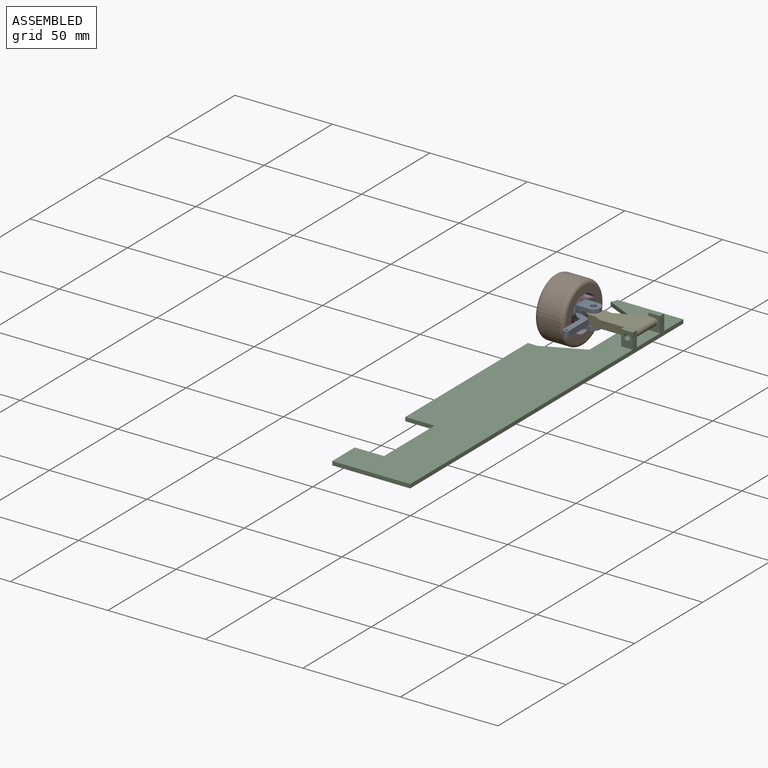
[diagram: assembled view]
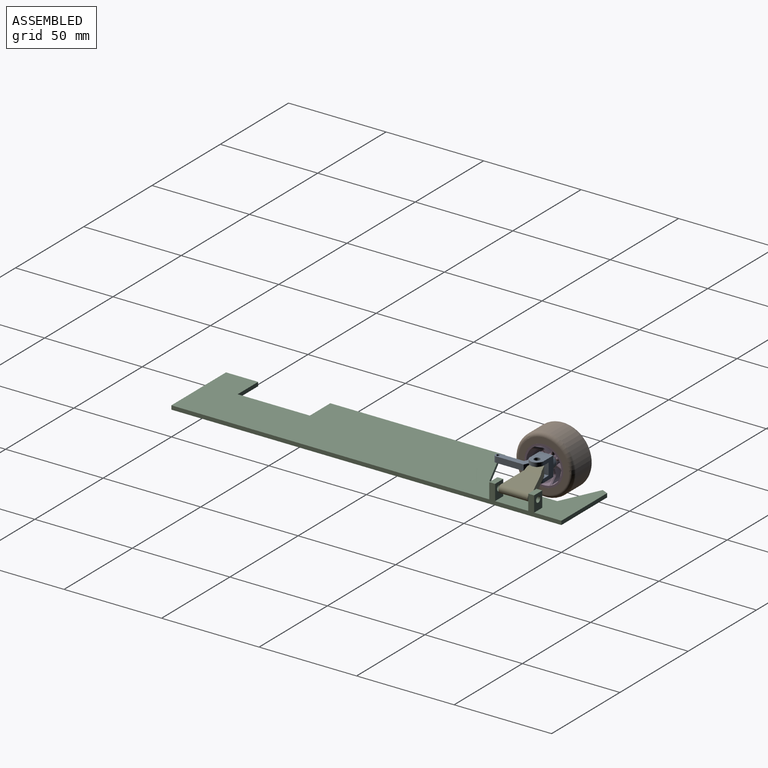
[diagram: assembled view, second angle]
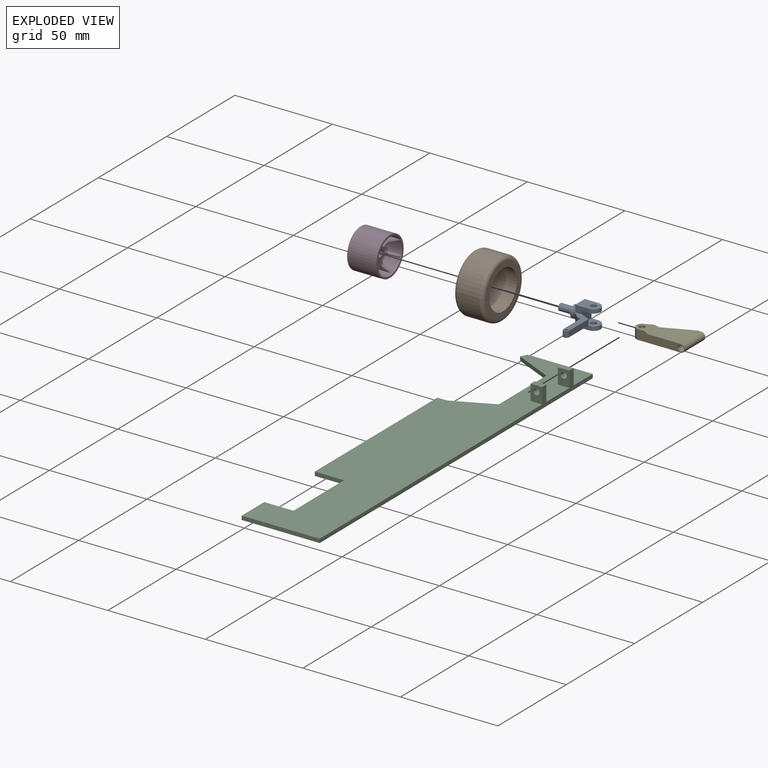
[diagram: exploded view]
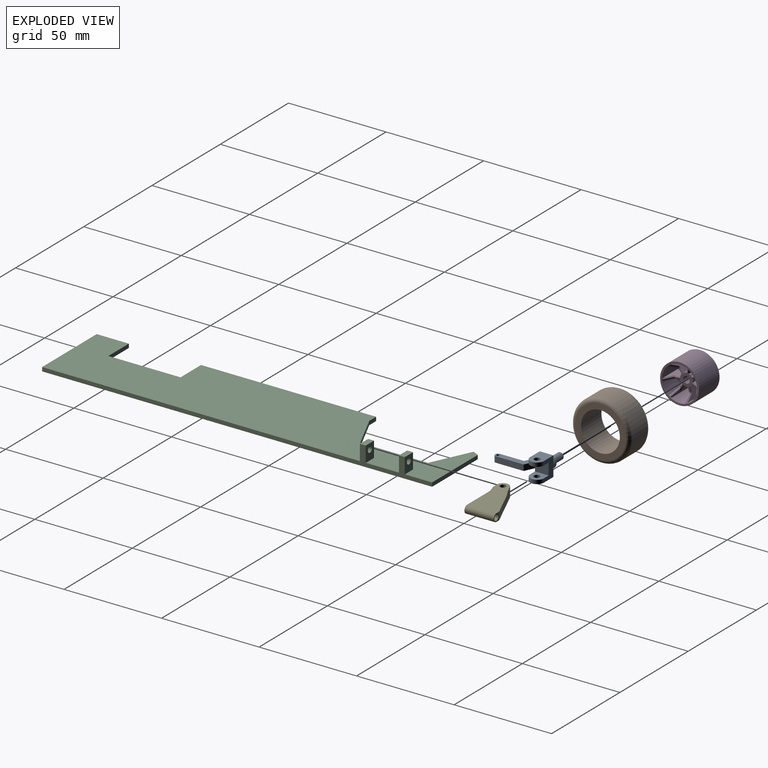
[diagram: exploded view, second angle]
ASSEMBLY  parts=5 mates=4
PART A: 26 faces, bbox 25x20.5x10 mm
  f0: plane 7x3.5mm, normal (1,0,0), area 19.2mm2, adj f5,f7,f8,f17,f23,f25
  f1: cylinder r=1.5mm len=3mm, axis (0,0,-1), area 18.8mm2, adj f9,f24
  f2: cylinder r=3.5mm len=7mm, axis (0,0,-1), area 22mm2, adj f3,f4,f9,f24
  f3: plane 7x3.5mm, normal (1,0,0), area 19.2mm2, adj f2,f5,f9,f18,f23,f24
  f4: plane 10x7mm, normal (-1,0,0), area 49mm2, adj f2,f5,f7,f8,f9,f23,f24,f25
  f5: plane 10x7mm, normal (0,-1,0), area 41.7mm2, adj f0,f3,f4,f8,f9,f11,f19
  f6: cylinder r=1.5mm len=3mm, axis (0,0,-1), area 18.8mm2, adj f8,f25
  f7: cylinder r=3.5mm len=7mm, axis (0,0,-1), area 22mm2, adj f0,f4,f8,f25
  f8: plane 10.5x7mm, normal (0,0,1), area 61.2mm2, adj f0,f4,f5,f6,f7
  f9: plane 10.5x7mm, normal (0,0,-1), area 61.2mm2, adj f1,f2,f3,f4,f5
  f10: plane 5x3mm, normal (-0.91,0.42,0), area 16.6mm2, adj f15,f17,f18,f23
  f11: plane 3x3mm, normal (0.69,-0.73,0), area 12.4mm2, adj f5,f12,f17,f18
  f12: plane 3x2.67mm, normal (0.91,-0.42,0), area 8.8mm2, adj f11,f13,f17,f18
  f13: plane 12.26x3mm, normal (0,-1,0), area 36.8mm2, adj f12,f14,f17,f18
  f14: cylinder r=1.5mm len=3mm, axis (0,0,-1), area 14.1mm2, adj f13,f15,f17,f18
  f15: plane 14.17x3mm, normal (0,1,0), area 42.5mm2, adj f10,f14,f17,f18
  f16: cylinder r=0.75mm len=3mm, axis (0,0,-1), area 14.1mm2, adj f17,f18
  f17: plane 18x8.5mm, normal (0,0,1), area 59.3mm2, adj f0,f10,f11,f12,f13,f14,f15,f16
  f18: plane 18x8.5mm, normal (0,0,-1), area 59.3mm2, adj f3,f10,f11,f12,f13,f14,f15,f16
  f19: cylinder r=3mm len=6mm, axis (0,1,0), area 56.5mm2, adj f5,f20
  f20: plane 6x6mm, normal (0,-1,0), area 18.7mm2, adj f19,f21
  f21: cylinder r=1.75mm len=7mm, axis (0,1,0), area 77mm2, adj f20,f22
  f22: plane 3.5x3.5mm, normal (0,-1,0), area 9.6mm2, adj f21
  f23: plane 7x6mm, normal (0,1,0), area 42mm2, adj f0,f3,f4,f10,f24,f25
  f24: plane 7x7mm, normal (0,0,1), area 36.7mm2, adj f1,f2,f3,f4,f23
  f25: plane 7x7mm, normal (0,0,-1), area 36.7mm2, adj f0,f4,f6,f7,f23
PART B: 6 faces, bbox 32.5x32.5x15 mm
  f0: cylinder r=10mm len=20mm, axis (0,0,-1), area 942.5mm2, adj f2,f3
  f1: cylinder r=15mm len=30mm, axis (0,0,-1), area 1036.7mm2, adj f4,f5
  f2: plane 26x26mm, normal (0,0,1), area 216.8mm2, adj f0,f5
  f3: plane 26x26mm, normal (0,0,-1), area 216.8mm2, adj f0,f4
  f4: torus R=13mm, axis (0,0,1), area 281.7mm2, adj f1,f3
  f5: torus R=13mm, axis (0,0,1), area 281.7mm2, adj f1,f2
PART C: 25 faces, bbox 40x200x10 mm
  f0: plane 200x40mm, normal (0,0,1), area 6240.2mm2, adj f1,f2,f3,f4,f5,f6,f7,f8
  f1: plane 20x9.33mm, normal (-0.42,-0.91,0), area 44.1mm2, adj f0,f2,f13,f14
  f2: plane 34.81x2mm, normal (-1,0,0), area 69.6mm2, adj f0,f1,f3,f14
  f3: plane 20x9.33mm, normal (-0.42,0.91,0), area 44.1mm2, adj f0,f2,f4,f14
  f4: plane 5x2mm, normal (0,1,0), area 10mm2, adj f0,f3,f5,f14
  f5: plane 89.77x2mm, normal (-1,0,0), area 179.5mm2, adj f0,f4,f6,f14
  f6: plane 15x2mm, normal (0,-1,0), area 30mm2, adj f0,f5,f7,f14
  f7: plane 37x2mm, normal (-1,0,0), area 74mm2, adj f0,f6,f8,f14
  f8: plane 15x2mm, normal (0,1,0), area 30mm2, adj f0,f7,f9,f14
  f9: plane 16.5x2mm, normal (-1,0,0), area 33mm2, adj f0,f8,f10,f14
  f10: plane 40x2mm, normal (0,-1,0), area 80mm2, adj f0,f9,f11,f14
  f11: plane 200x10mm, normal (1,0,0), area 448mm2, adj f0,f10,f12,f14,f15,f17,f18,f19
  f12: plane 33.48x2mm, normal (0,1,0), area 67mm2, adj f0,f11,f13,f14
  f13: plane 3.27x2mm, normal (-0.91,0.42,0), area 7.2mm2, adj f0,f1,f12,f14
  f14: plane 200x40mm, normal (0,0,-1), area 6276.2mm2, adj f1,f2,f3,f4,f5,f6,f7,f8
  f15: plane 8x6mm, normal (0,1,0), area 40.9mm2, adj f0,f11,f16,f18,f24
  f16: plane 8x3mm, normal (-1,0,0), area 24mm2, adj f0,f15,f17,f18
  f17: plane 8x6mm, normal (0,-1,0), area 40.9mm2, adj f0,f11,f16,f18,f24
  f18: plane 6x3mm, normal (0,0,1), area 18mm2, adj f11,f15,f16,f17
  f19: plane 8x6mm, normal (0,1,0), area 40.9mm2, adj f0,f11,f20,f22,f23
  f20: plane 8x3mm, normal (-1,0,0), area 24mm2, adj f0,f19,f21,f22
  f21: plane 8x6mm, normal (0,-1,0), area 40.9mm2, adj f0,f11,f20,f22,f23
  f22: plane 6x3mm, normal (0,0,1), area 18mm2, adj f11,f19,f20,f21
  f23: cylinder r=1.5mm len=3mm, axis (0,-1,0), area 28.3mm2, adj f19,f21
  f24: cylinder r=1.5mm len=3mm, axis (0,-1,0), area 28.3mm2, adj f15,f17
PART D: 139 faces, bbox 20.1x20.1x15.6 mm
  f0: plane 13.08x5.67mm, normal (-0.22,0.97,0), area 41.2mm2, adj f1,f28,f80,f81,f82,f130,f131
  f1: cylinder r=9mm len=14.5mm, axis (0,0,-1), area 96mm2, adj f0,f2,f30,f79,f82,f126,f130,f132
  f2: plane 13.08x4.55mm, normal (-0.62,-0.78,0), area 41.2mm2, adj f1,f28,f77,f78,f79,f126,f127
  f3: plane 13.08x5.24mm, normal (-0.9,0.43,0), area 41.2mm2, adj f4,f21,f86,f87,f88,f104,f105
  f4: cylinder r=9mm len=14.5mm, axis (0,0,-1), area 96mm2, adj f3,f5,f30,f85,f88,f104,f128,f133
  f5: plane 13.08x5.67mm, normal (0.22,-0.97,0), area 41.2mm2, adj f4,f21,f83,f84,f85,f128,f129
  f6: plane 13.08x5.24mm, normal (-0.9,-0.43,0), area 41.2mm2, adj f7,f22,f92,f93,f94,f108,f109
  f7: cylinder r=9mm len=14.5mm, axis (0,0,-1), area 96mm2, adj f6,f8,f30,f91,f94,f106,f108,f134
  f8: plane 13.08x5.24mm, normal (0.9,-0.43,0), area 41.2mm2, adj f7,f22,f89,f90,f91,f106,f107
  f9: plane 13.08x5.67mm, normal (-0.22,-0.97,0), area 41.2mm2, adj f10,f23,f98,f99,f100,f112,f113
  f10: cylinder r=9mm len=14.5mm, axis (0,0,-1), area 96mm2, adj f9,f11,f30,f97,f100,f110,f112,f135
  f11: plane 13.08x5.24mm, normal (0.9,0.43,0), area 41.2mm2, adj f10,f23,f95,f96,f97,f110,f111
  f12: plane 13.08x4.55mm, normal (0.62,-0.78,0), area 41.2mm2, adj f13,f24,f62,f63,f64,f116,f117
  f13: cylinder r=9mm len=14.5mm, axis (0,0,-1), area 96mm2, adj f12,f14,f30,f64,f103,f114,f116,f136
  f14: plane 13.08x5.67mm, normal (0.22,0.97,0), area 41.2mm2, adj f13,f24,f101,f102,f103,f114,f115
  f15: plane 13.08x5.82mm, normal (1,0,0), area 41.2mm2, adj f16,f25,f68,f69,f70,f120,f121
  f16: cylinder r=9mm len=14.5mm, axis (0,0,-1), area 96mm2, adj f15,f17,f30,f67,f70,f118,f120,f137
  f17: plane 13.08x4.55mm, normal (-0.62,0.78,0), area 41.2mm2, adj f16,f25,f65,f66,f67,f118,f119
  f18: cylinder r=3.25mm len=5mm, axis (0,0,-1), area 7.7mm2, adj f19,f27,f38,f46,f71,f74,f123,f125
  f19: plane 13.08x4.55mm, normal (0.62,0.78,0), area 41.2mm2, adj f18,f20,f74,f75,f76,f124,f125
  f20: cylinder r=9mm len=14.5mm, axis (0,0,-1), area 96mm2, adj f19,f27,f30,f73,f76,f122,f124,f138
  f21: cylinder r=3.25mm len=5mm, axis (0,0,-1), area 7.7mm2, adj f3,f5,f38,f46,f83,f86,f105,f129
  f22: cylinder r=3.25mm len=5mm, axis (0,0,-1), area 7.7mm2, adj f6,f8,f38,f46,f89,f92,f107,f109
  f23: cylinder r=3.25mm len=5mm, axis (0,0,-1), area 7.7mm2, adj f9,f11,f38,f46,f95,f98,f111,f113
  f24: cylinder r=3.25mm len=5mm, axis (0,0,-1), area 7.7mm2, adj f12,f14,f38,f46,f62,f101,f115,f117
  f25: cylinder r=3.25mm len=5mm, axis (0,0,-1), area 7.7mm2, adj f15,f17,f38,f46,f65,f68,f119,f121
  f26: cylinder r=10mm len=20mm, axis (0,0,-1), area 942.5mm2, adj f29,f30
  f27: plane 13.08x5.82mm, normal (-1,0,0), area 41.2mm2, adj f18,f20,f71,f72,f73,f122,f123
  f28: cylinder r=3.25mm len=5mm, axis (0,0,-1), area 7.7mm2, adj f0,f2,f38,f46,f77,f80,f127,f131
  f29: plane 20x20mm, normal (0,0,1), area 32.4mm2, adj f26,f39,f40,f41,f42,f43,f44,f45
  f30: plane 20x20mm, normal (0,0,-1), area 59.7mm2, adj f1,f4,f7,f10,f13,f16,f20,f26
  f31: cone r=6mm half-angle=31deg, axis (0,0,-1), area 2.5mm2, adj f30,f58,f82,f85
  f32: cone r=6mm half-angle=31deg, axis (0,0,-1), area 2.5mm2, adj f30,f57,f88,f91
  f33: cone r=6mm half-angle=31deg, axis (0,0,-1), area 2.5mm2, adj f30,f56,f94,f97
  f34: cone r=6mm half-angle=31deg, axis (0,0,-1), area 2.5mm2, adj f30,f55,f100,f103
  f35: cone r=6mm half-angle=31deg, axis (0,0,-1), area 2.5mm2, adj f30,f61,f64,f67
  f36: cone r=6mm half-angle=31deg, axis (0,0,-1), area 2.5mm2, adj f30,f60,f70,f73
  f37: cone r=6mm half-angle=31deg, axis (0,0,-1), area 2.5mm2, adj f30,f59,f76,f79
  f38: plane 10.7x10.43mm, normal (0,0,-1), area 31.2mm2, adj f18,f21,f22,f23,f24,f25,f28,f47
  f39: cone r=9mm half-angle=48.4deg, axis (0,0,1), area 1.2mm2, adj f29,f51,f128,f130
  f40: cone r=9mm half-angle=48.4deg, axis (0,0,1), area 1.2mm2, adj f29,f50,f104,f106
  f41: cone r=9mm half-angle=48.4deg, axis (0,0,1), area 1.2mm2, adj f29,f49,f108,f110
  f42: cone r=9mm half-angle=48.4deg, axis (0,0,1), area 1.2mm2, adj f29,f48,f112,f114
  f43: cone r=9mm half-angle=48.4deg, axis (0,0,1), area 1.2mm2, adj f29,f54,f116,f118
  f44: cone r=9mm half-angle=48.4deg, axis (0,0,1), area 1.2mm2, adj f29,f53,f120,f122
  f45: cone r=9mm half-angle=48.4deg, axis (0,0,1), area 1.2mm2, adj f29,f52,f124,f126
  f46: plane 6.61x6.61mm, normal (0,0,1), area 23.2mm2, adj f18,f21,f22,f23,f24,f25,f28,f47
  f47: cylinder r=1.75mm len=5mm, axis (0,0,-1), area 55mm2, adj f38,f46
  f48: torus R=2.99mm, axis (0,0,-1), area 0.1mm2, adj f42,f46,f113,f115
  f49: torus R=2.99mm, axis (0,0,-1), area 0.1mm2, adj f41,f46,f109,f111
  f50: torus R=2.99mm, axis (0,0,-1), area 0.1mm2, adj f40,f46,f105,f107
  f51: torus R=2.99mm, axis (0,0,-1), area 0.1mm2, adj f39,f46,f129,f131
  f52: torus R=2.99mm, axis (0,0,-1), area 0.1mm2, adj f45,f46,f125,f127
  f53: torus R=2.99mm, axis (0,0,-1), area 0.1mm2, adj f44,f46,f121,f123
  f54: torus R=2.99mm, axis (0,0,-1), area 0.1mm2, adj f43,f46,f117,f119
  f55: torus R=5.43mm, axis (0,0,1), area 0.5mm2, adj f34,f38,f99,f102
  f56: torus R=5.43mm, axis (0,0,1), area 0.5mm2, adj f33,f38,f93,f96
  f57: torus R=5.43mm, axis (0,0,1), area 0.5mm2, adj f32,f38,f87,f90
  f58: torus R=5.43mm, axis (0,0,1), area 0.5mm2, adj f31,f38,f81,f84
  f59: torus R=5.43mm, axis (0,0,1), area 0.5mm2, adj f37,f38,f75,f78
  f60: torus R=5.43mm, axis (0,0,1), area 0.5mm2, adj f36,f38,f69,f72
  f61: torus R=5.43mm, axis (0,0,1), area 0.5mm2, adj f35,f38,f63,f66
  f62: plane 2.03x1.81mm, normal (0.44,-0.55,-0.71), area 1.6mm2, adj f12,f24,f38,f63
  f63: bspline ~1.32x0.99mm, area 0.9mm2, adj f12,f61,f62,f64
  f64: bspline ~4.77x2.78mm, area 3.5mm2, adj f12,f13,f35,f63
  f65: plane 2.09x1.76mm, normal (-0.44,0.55,-0.71), area 1.6mm2, adj f17,f25,f38,f66
  f66: bspline ~1.19x1.01mm, area 0.9mm2, adj f17,f61,f65,f67
  f67: bspline ~4.77x2.36mm, area 3.5mm2, adj f16,f17,f35,f66
  f68: plane 2.27x0.5mm, normal (0.71,0,-0.71), area 1.6mm2, adj f15,f25,f38,f69
  f69: bspline ~1.29x0.99mm, area 0.9mm2, adj f15,f60,f68,f70
  f70: bspline ~5x3.27mm, area 3.5mm2, adj f15,f16,f36,f69
  f71: plane 2.27x0.5mm, normal (-0.71,0,-0.71), area 1.6mm2, adj f18,f27,f38,f72
  f72: bspline ~1.29x0.99mm, area 0.9mm2, adj f27,f60,f71,f73
  f73: bspline ~5x3.27mm, area 3.5mm2, adj f20,f27,f36,f72
  f74: plane 2.09x1.76mm, normal (0.44,0.55,-0.71), area 1.6mm2, adj f18,f19,f38,f75
  f75: bspline ~1.19x1.01mm, area 0.9mm2, adj f19,f59,f74,f76
  f76: bspline ~4.77x2.36mm, area 3.5mm2, adj f19,f20,f37,f75
  f77: plane 2.03x1.81mm, normal (-0.44,-0.55,-0.71), area 1.6mm2, adj f2,f28,f38,f78
  f78: bspline ~1.32x0.99mm, area 0.9mm2, adj f2,f59,f77,f79
  f79: bspline ~4.77x2.78mm, area 3.5mm2, adj f1,f2,f37,f78
  f80: plane 2.25x0.99mm, normal (-0.16,0.69,-0.71), area 1.6mm2, adj f0,f28,f38,f81
  f81: bspline ~1.37x0.99mm, area 0.9mm2, adj f0,f58,f80,f82
  f82: bspline ~5x3.31mm, area 3.5mm2, adj f0,f1,f31,f81
  f83: plane 2.32x0.98mm, normal (0.16,-0.69,-0.71), area 1.6mm2, adj f5,f21,f38,f84
  f84: bspline ~1.26x0.99mm, area 0.9mm2, adj f5,f58,f83,f85
  f85: bspline ~5x3.08mm, area 3.5mm2, adj f4,f5,f31,f84
  f86: plane 2.26x1.4mm, normal (-0.64,0.31,-0.71), area 1.6mm2, adj f3,f21,f38,f87
  f87: bspline ~1.16x1.01mm, area 0.9mm2, adj f3,f57,f86,f88
  f88: bspline ~5x2.73mm, area 3.5mm2, adj f3,f4,f32,f87
  f89: plane 2.19x1.44mm, normal (0.64,-0.31,-0.71), area 1.6mm2, adj f8,f22,f38,f90
  f90: bspline ~1.38x0.99mm, area 0.9mm2, adj f8,f57,f89,f91
  f91: bspline ~5x3.17mm, area 3.5mm2, adj f7,f8,f32,f90
  f92: plane 2.19x1.44mm, normal (-0.64,-0.31,-0.71), area 1.6mm2, adj f6,f22,f38,f93
  f93: bspline ~1.38x0.99mm, area 0.9mm2, adj f6,f56,f92,f94
  f94: bspline ~5x3.17mm, area 3.5mm2, adj f6,f7,f33,f93
  f95: plane 2.26x1.4mm, normal (0.64,0.31,-0.71), area 1.6mm2, adj f11,f23,f38,f96
  f96: bspline ~1.16x1.01mm, area 0.9mm2, adj f11,f56,f95,f97
  f97: bspline ~4.77x2.6mm, area 3.5mm2, adj f10,f11,f33,f96
  f98: plane 2.32x0.98mm, normal (-0.16,-0.69,-0.71), area 1.6mm2, adj f9,f23,f38,f99
  f99: bspline ~1.26x0.99mm, area 0.9mm2, adj f9,f55,f98,f100
  f100: bspline ~5x3.08mm, area 3.5mm2, adj f9,f10,f34,f99
  f101: plane 2.25x0.99mm, normal (0.16,0.69,-0.71), area 1.6mm2, adj f14,f24,f38,f102
  f102: bspline ~1.37x0.99mm, area 0.9mm2, adj f14,f55,f101,f103
  f103: bspline ~5x3.31mm, area 3.5mm2, adj f13,f14,f34,f102
  f104: bspline ~5.53x5.21mm, area 6.6mm2, adj f3,f4,f29,f40,f105,f133
  f105: bspline ~1.08x1mm, area 0.7mm2, adj f3,f21,f46,f50,f104
  f106: bspline ~5.8x5.53mm, area 6.6mm2, adj f7,f8,f29,f40,f107,f134
  f107: bspline ~1.37x0.97mm, area -0.7mm2, adj f8,f22,f46,f50,f106
  f108: bspline ~5.8x5.53mm, area 6.6mm2, adj f6,f7,f29,f41,f109,f134
  f109: bspline ~1.37x0.96mm, area 0.7mm2, adj f6,f22,f46,f49,f108
  f110: bspline ~5.53x5.21mm, area 6.6mm2, adj f10,f11,f29,f41,f111,f135
  f111: bspline ~1.14x1.12mm, area -0.7mm2, adj f11,f23,f46,f49,f110
  f112: bspline ~5.76x5.49mm, area 6.6mm2, adj f9,f10,f29,f42,f113,f135
  f113: bspline ~1.08x0.92mm, area 0.7mm2, adj f9,f23,f46,f48,f112
  f114: bspline ~6.06x5.49mm, area 6.6mm2, adj f13,f14,f29,f42,f115,f136
  f115: bspline ~1.32x0.96mm, area -0.7mm2, adj f14,f24,f46,f48,f114
  f116: bspline ~5.53x5.2mm, area 6.6mm2, adj f12,f13,f29,f43,f117,f136
  f117: bspline ~1.28x0.94mm, area 0.7mm2, adj f12,f24,f46,f54,f116
  f118: bspline ~5.49x4.47mm, area 6.6mm2, adj f16,f17,f29,f43,f119,f137
  f119: bspline ~1.27x1.06mm, area -0.7mm2, adj f17,f25,f46,f54,f118
  f120: bspline ~6.06x5.49mm, area 6.6mm2, adj f15,f16,f29,f44,f121,f137
  f121: bspline ~1.1x0.92mm, area 0.7mm2, adj f15,f25,f46,f53,f120
  f122: bspline ~6.06x5.49mm, area 6.6mm2, adj f20,f27,f29,f44,f123,f138
  f123: bspline ~1.26x0.96mm, area -0.7mm2, adj f18,f27,f46,f53,f122
  f124: bspline ~5.49x4.47mm, area 6.6mm2, adj f19,f20,f29,f45,f125,f138
  f125: bspline ~1.21x0.94mm, area 0.7mm2, adj f18,f19,f46,f52,f124
  f126: bspline ~5.53x5.2mm, area 6.6mm2, adj f1,f2,f29,f45,f127,f132
  f127: bspline ~1.35x1.04mm, area -0.7mm2, adj f2,f28,f46,f52,f126
  f128: bspline ~5.76x5.49mm, area 6.6mm2, adj f4,f5,f29,f39,f129,f133
  f129: bspline ~1.23x0.96mm, area -0.7mm2, adj f5,f21,f46,f51,f128
  f130: bspline ~6.06x5.49mm, area 6.6mm2, adj f0,f1,f29,f39,f131,f132
  f131: bspline ~1.22x0.92mm, area 0.7mm2, adj f0,f28,f46,f51,f130
  f132: cone r=9.5mm half-angle=45deg, axis (0,0,1), area 5.3mm2, adj f1,f29,f126,f130
  f133: cone r=9.5mm half-angle=45deg, axis (0,0,1), area 5.3mm2, adj f4,f29,f104,f128
  f134: cone r=9.5mm half-angle=45deg, axis (0,0,1), area 5.3mm2, adj f7,f29,f106,f108
  f135: cone r=9.5mm half-angle=45deg, axis (0,0,1), area 5.3mm2, adj f10,f29,f110,f112
  f136: cone r=9.5mm half-angle=45deg, axis (0,0,1), area 5.3mm2, adj f13,f29,f114,f116
  f137: cone r=9.5mm half-angle=45deg, axis (0,0,1), area 5.3mm2, adj f16,f29,f118,f120
  f138: cone r=9.5mm half-angle=45deg, axis (0,0,1), area 5.3mm2, adj f20,f29,f122,f124
PART E: 11 faces, bbox 27x15x5 mm
  f0: plane 21.2x9.25mm, normal (-0.4,0.92,0), area 98.3mm2, adj f2,f3,f5,f6,f8,f9
  f1: plane 24x5mm, normal (0,-1,0), area 91.3mm2, adj f3,f5,f6,f7,f8,f9,f10
  f2: plane 4x4mm, normal (0,1,0), area 7.2mm2, adj f0,f6,f7,f8,f10
  f3: cylinder r=3mm len=5.75mm, axis (0,0,-1), area 41mm2, adj f0,f1,f5,f6
  f4: cylinder r=1.5mm len=5mm, axis (0,0,-1), area 47.1mm2, adj f5,f6
  f5: plane 7.58x6mm, normal (0,0,1), area 28mm2, adj f0,f1,f3,f4,f9
  f6: plane 25x15mm, normal (0,0,-1), area 249.9mm2, adj f0,f1,f2,f3,f4,f10
  f7: cylinder r=1.5mm len=15mm, axis (0,-1,0), area 141.4mm2, adj f1,f2
  f8: plane 16.86x15mm, normal (0,0,1), area 204.7mm2, adj f0,f1,f2,f9,f10
  f9: plane 8.52x2.14mm, normal (0.42,0,0.91), area 19mm2, adj f0,f1,f5,f8
  f10: cylinder r=2mm len=15mm, axis (0,1,0), area 94.2mm2, adj f1,f2,f6,f8
PLACE A rot(axis=(0,0,-1),90deg) t=(-25,70,8)mm
PLACE B rot(axis=(-0.71,-0.03,0.71),177deg) t=(-30,70,8)mm
PLACE C at identity fixed
PLACE D rot(axis=(-0.71,-0.03,0.71),177deg) t=(-30,70,8)mm
PLACE E at identity
MATE revolute E.f10 <-> C.f23  axis (0,-1,0) through (-3,67,7)mm
MATE revolute D.f47 <-> A.f21  axis (1,0,0) through (-35,70,8)mm
MATE revolute A.f1 <-> E.f3  axis (0,0,-1) through (-25,70,11)mm
MATE fastened D.f26 <-> B.f0  axis (1,0,0) through (-30,70,8)mm
